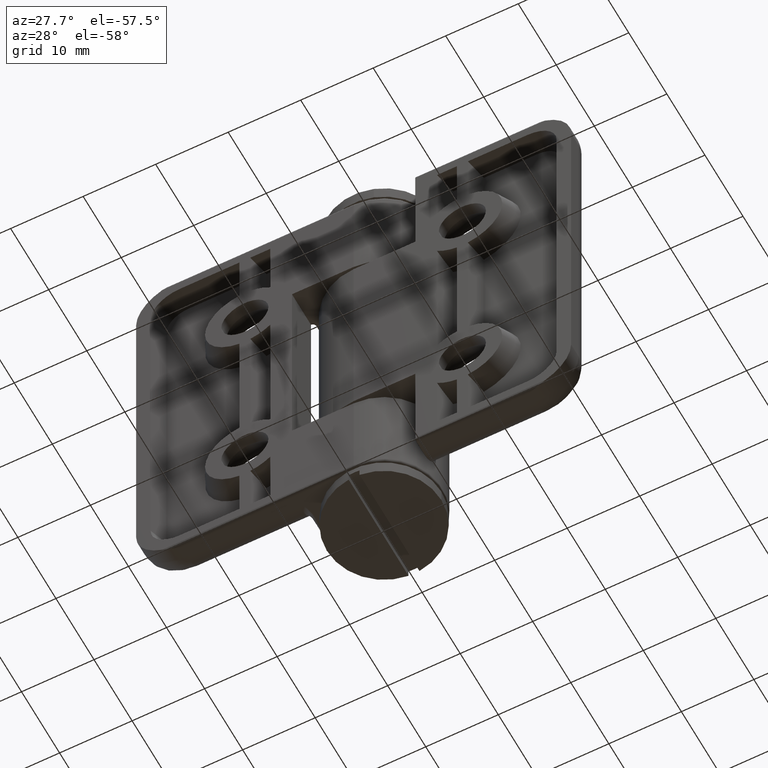
[diagram: clean part render]
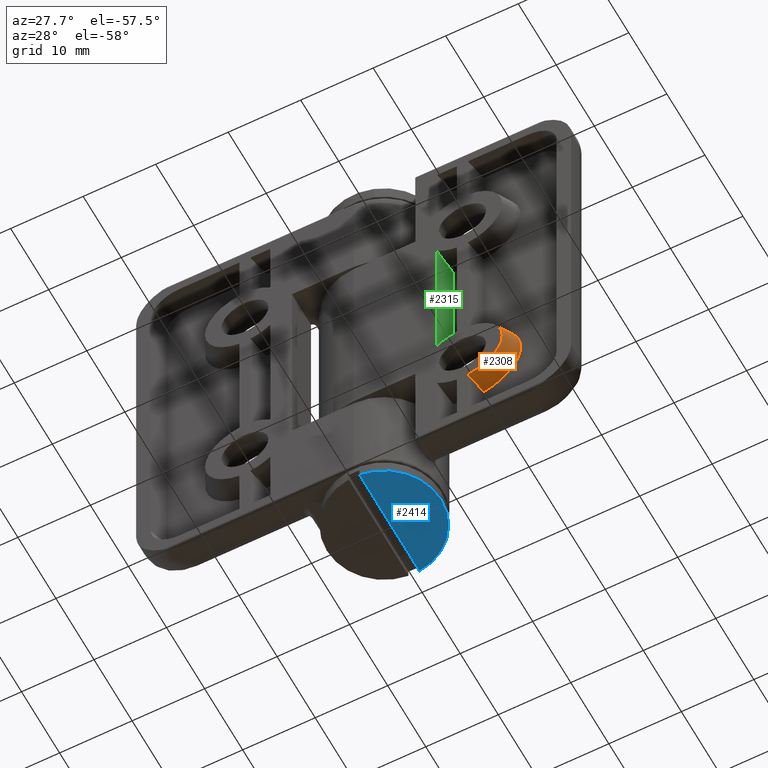
[diagram: same view with three faces highlighted in distinct colors, each labeled with its STEP entity id]
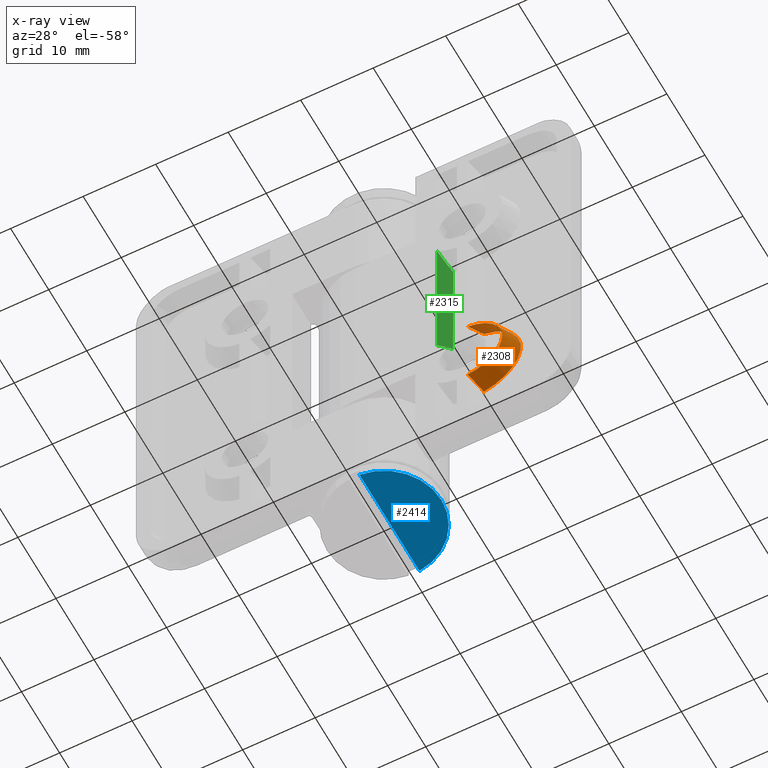
[diagram: x-ray of the same camera — body ghosted, the three highlighted faces saturated]
A machine part, auxiliary view with three faces highlighted in distinct colors.
The next image is the same camera in x-ray (body ghosted, the three faces saturated) — at least one of them is partly hidden behind the body in this view.
Their STEP definitions:

[orange] entity #2308 — the highlighted conical surface has half-angle 26.565 deg.
#87=(
BOUNDED_CURVE()
B_SPLINE_CURVE(2,(#3576,#3577,#3578),.UNSPECIFIED.,.F.,.F.)
B_SPLINE_CURVE_WITH_KNOTS((3,3),(0.,0.287668637562988),.UNSPECIFIED.)
CURVE()
GEOMETRIC_REPRESENTATION_ITEM()
RATIONAL_B_SPLINE_CURVE((1.,1.0025639824793,1.))
REPRESENTATION_ITEM('')
);
#88=(
BOUNDED_CURVE()
B_SPLINE_CURVE(2,(#3583,#3584,#3585),.UNSPECIFIED.,.F.,.F.)
B_SPLINE_CURVE_WITH_KNOTS((3,3),(0.,0.287668637562988),.UNSPECIFIED.)
CURVE()
GEOMETRIC_REPRESENTATION_ITEM()
RATIONAL_B_SPLINE_CURVE((1.,1.00256398247937,1.))
REPRESENTATION_ITEM('')
);
#157=CONICAL_SURFACE('',#2506,6.75,0.463647609000806);
#275=FACE_OUTER_BOUND('',#447,.T.);
#447=EDGE_LOOP('',(#1729,#1730,#1731,#1732));
#925=CIRCLE('',#2465,6.75);
#935=CIRCLE('',#2484,5.5);
#1064=VERTEX_POINT('',#3517);
#1065=VERTEX_POINT('',#3519);
#1084=VERTEX_POINT('',#3574);
#1086=VERTEX_POINT('',#3582);
#1286=EDGE_CURVE('',#1064,#1065,#925,.T.);
#1307=EDGE_CURVE('',#1064,#1084,#87,.T.);
#1309=EDGE_CURVE('',#1086,#1065,#88,.T.);
#1331=EDGE_CURVE('',#1084,#1086,#935,.T.);
#1729=ORIENTED_EDGE('',*,*,#1309,.T.);
#1730=ORIENTED_EDGE('',*,*,#1286,.F.);
#1731=ORIENTED_EDGE('',*,*,#1307,.T.);
#1732=ORIENTED_EDGE('',*,*,#1331,.T.);
#2308=ADVANCED_FACE('',(#275),#157,.T.);
#2465=AXIS2_PLACEMENT_3D('',#3520,#2800,#2801);
#2484=AXIS2_PLACEMENT_3D('',#3625,#2865,#2866);
#2506=AXIS2_PLACEMENT_3D('',#3692,#2926,#2927);
#2800=DIRECTION('center_axis',(-4.44089209850063E-16,1.,0.));
#2801=DIRECTION('ref_axis',(-1.,-4.44089209850063E-16,0.));
#2865=DIRECTION('center_axis',(-3.30704730739408E-16,1.,0.));
#2866=DIRECTION('ref_axis',(-1.,-3.30704730739408E-16,0.));
#2926=DIRECTION('center_axis',(-4.44089209850063E-16,1.,0.));
#2927=DIRECTION('ref_axis',(-1.,-4.44089209850063E-16,0.));
#3517=CARTESIAN_POINT('',(-16.6599255856655,-5.50000000000001,8.45728290004428));
#3519=CARTESIAN_POINT('',(-16.6599255856655,-5.50000000000001,21.5427170999557));
#3520=CARTESIAN_POINT('Origin',(-15.,-5.5,15.));
#3574=CARTESIAN_POINT('',(-15.75,-8.00000000000001,9.55137632057416));
#3576=CARTESIAN_POINT('Ctrl Pts',(-16.6599255856655,-5.5,8.45728290004427));
#3577=CARTESIAN_POINT('Ctrl Pts',(-16.1634518552835,-6.86405036357702,9.03495735419821));
#3578=CARTESIAN_POINT('Ctrl Pts',(-15.75,-8.00000000000001,9.55137632057416));
#3582=CARTESIAN_POINT('',(-15.75,-8.00000000000001,20.4486236794258));
#3583=CARTESIAN_POINT('Ctrl Pts',(-15.75,-8.00000000000001,20.4486236794258));
#3584=CARTESIAN_POINT('Ctrl Pts',(-16.1634518552836,-6.86405036357669,20.9650426458019));
#3585=CARTESIAN_POINT('Ctrl Pts',(-16.6599255856655,-5.5,21.5427170999557));
#3625=CARTESIAN_POINT('Origin',(-15.,-8.00000000000001,15.));
#3692=CARTESIAN_POINT('Origin',(-15.,-5.5,15.));

[blue] entity #2414 — the highlighted planar face has unit normal (0, -0, -1).
#381=FACE_OUTER_BOUND('',#588,.T.);
#588=EDGE_LOOP('',(#2175,#2176));
#749=LINE('',#4584,#899);
#899=VECTOR('',#3372,15.7286363045243);
#1025=CIRCLE('',#2691,7.9);
#1240=VERTEX_POINT('',#4578);
#1242=VERTEX_POINT('',#4582);
#1553=EDGE_CURVE('',#1240,#1242,#749,.T.);
#1561=EDGE_CURVE('',#1242,#1240,#1025,.T.);
#2175=ORIENTED_EDGE('',*,*,#1553,.T.);
#2176=ORIENTED_EDGE('',*,*,#1561,.T.);
#2267=PLANE('',#2690);
#2414=ADVANCED_FACE('',(#381),#2267,.T.);
#2690=AXIS2_PLACEMENT_3D('',#4599,#3389,#3390);
#2691=AXIS2_PLACEMENT_3D('',#4600,#3391,#3392);
#3372=DIRECTION('',(0.,0.,-1.));
#3389=DIRECTION('center_axis',(0.,-1.,0.));
#3390=DIRECTION('ref_axis',(0.,0.,-1.));
#3391=DIRECTION('center_axis',(0.,-1.,0.));
#3392=DIRECTION('ref_axis',(1.,0.,0.));
#4578=CARTESIAN_POINT('',(0.75,0.,7.86431815226215));
#4582=CARTESIAN_POINT('',(0.75,0.,-7.86431815226215));
#4584=CARTESIAN_POINT('',(0.75,-9.86076131526265E-31,4.68128831206632));
#4599=CARTESIAN_POINT('Origin',(0.,-9.86076131526265E-31,0.));
#4600=CARTESIAN_POINT('Origin',(0.,4.44089209850063E-15,0.));

[green] entity #2315 — the highlighted planar face has unit normal (-0.9397, 0.342, -0).
#90=(
BOUNDED_CURVE()
B_SPLINE_CURVE(2,(#3676,#3677,#3678),.UNSPECIFIED.,.F.,.F.)
B_SPLINE_CURVE_WITH_KNOTS((3,3),(0.,0.332505999873622),.UNSPECIFIED.)
CURVE()
GEOMETRIC_REPRESENTATION_ITEM()
RATIONAL_B_SPLINE_CURVE((1.,1.00336343920348,1.))
REPRESENTATION_ITEM('')
);
#91=(
BOUNDED_CURVE()
B_SPLINE_CURVE(2,(#3689,#3690,#3691),.UNSPECIFIED.,.F.,.F.)
B_SPLINE_CURVE_WITH_KNOTS((3,3),(0.,0.332505999873621),.UNSPECIFIED.)
CURVE()
GEOMETRIC_REPRESENTATION_ITEM()
RATIONAL_B_SPLINE_CURVE((1.,1.00336343920354,1.))
REPRESENTATION_ITEM('')
);
#282=FACE_OUTER_BOUND('',#457,.T.);
#457=EDGE_LOOP('',(#1751,#1752,#1753,#1754));
#641=LINE('',#3623,#791);
#657=LINE('',#3682,#807);
#791=VECTOR('',#2862,21.5147186257614);
#807=VECTOR('',#2916,17.5334023040431);
#1099=VERTEX_POINT('',#3620);
#1100=VERTEX_POINT('',#3622);
#1114=VERTEX_POINT('',#3675);
#1115=VERTEX_POINT('',#3681);
#1329=EDGE_CURVE('',#1099,#1100,#641,.T.);
#1354=EDGE_CURVE('',#1114,#1100,#90,.T.);
#1356=EDGE_CURVE('',#1114,#1115,#657,.T.);
#1360=EDGE_CURVE('',#1099,#1115,#91,.T.);
#1751=ORIENTED_EDGE('',*,*,#1354,.T.);
#1752=ORIENTED_EDGE('',*,*,#1329,.F.);
#1753=ORIENTED_EDGE('',*,*,#1360,.T.);
#1754=ORIENTED_EDGE('',*,*,#1356,.F.);
#2222=PLANE('',#2517);
#2315=ADVANCED_FACE('',(#282),#2222,.F.);
#2517=AXIS2_PLACEMENT_3D('',#3716,#2950,#2951);
#2862=DIRECTION('',(7.23627507121754E-16,2.39307039898329E-31,-1.));
#2916=DIRECTION('',(-7.23627507121754E-16,-2.39307039898329E-31,1.));
#2950=DIRECTION('center_axis',(0.939692620785909,0.342020143325668,6.79987428640015E-16));
#2951=DIRECTION('ref_axis',(0.,0.,-1.));
#3620=CARTESIAN_POINT('',(-11.5,-8.,10.7573593128807));
#3622=CARTESIAN_POINT('',(-11.5,-8.,-10.7573593128807));
#3623=CARTESIAN_POINT('',(-11.5,-8.,-14.));
#3675=CARTESIAN_POINT('',(-12.4099255856655,-5.5,-8.76670115202153));
#3676=CARTESIAN_POINT('Ctrl Pts',(-12.4099255856655,-5.5,-8.76670115202153));
#3677=CARTESIAN_POINT('Ctrl Pts',(-11.8685098886893,-6.98752740198026,-9.79708844494322));
#3678=CARTESIAN_POINT('Ctrl Pts',(-11.5,-8.00000000000001,-10.7573593128807));
#3681=CARTESIAN_POINT('',(-12.4099255856655,-5.5,8.76670115202152));
#3682=CARTESIAN_POINT('',(-12.4099255856655,-5.50000000000001,28.));
#3689=CARTESIAN_POINT('Ctrl Pts',(-11.5,-8.00000000000001,10.7573593128807));
#3690=CARTESIAN_POINT('Ctrl Pts',(-11.8685098886893,-6.98752740198026,9.79708844494321));
#3691=CARTESIAN_POINT('Ctrl Pts',(-12.4099255856655,-5.5,8.76670115202152));
#3716=CARTESIAN_POINT('Origin',(-11.5,-8.00000000000001,-28.));